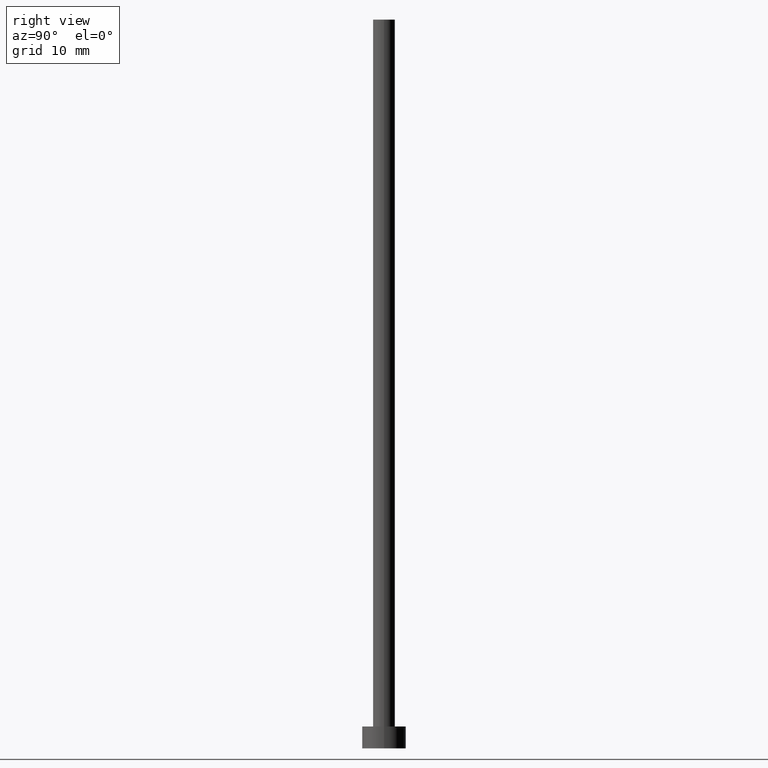
[diagram: clean part render]
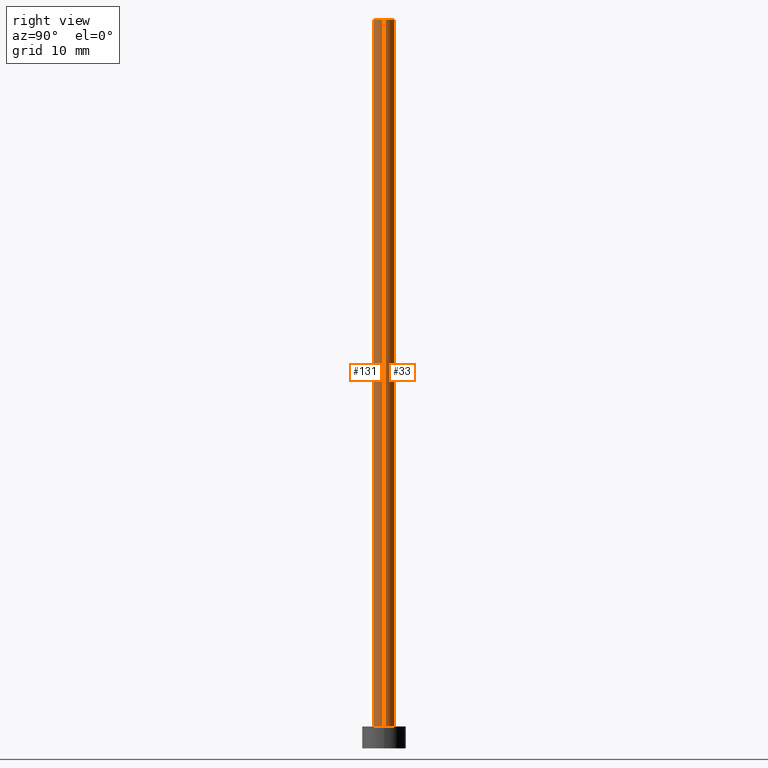
[diagram: same view with one multi-face feature highlighted, each face labeled with its STEP entity id]
A machine part, right view. The highlighted faces form ONE feature: a constant-radius fillet chain: 2 tangent blend faces with common blend radius 1.5 mm. The faces share edges in the B-rep.
Their STEP definitions:
[1] entity #33 (Cylinder):
#3 = CIRCLE ( 'NONE', #7, 1.500000000000000222 ) ;
#7 = AXIS2_PLACEMENT_3D ( 'NONE', #145, #199, #236 ) ;
#27 = VERTEX_POINT ( 'NONE', #249 ) ;
#29 = ORIENTED_EDGE ( 'NONE', *, *, #108, .F. ) ;
#33 = ADVANCED_FACE ( 'NONE', ( #122 ), #212, .T. ) ;
#34 = EDGE_LOOP ( 'NONE', ( #29, #241, #49, #50 ) ) ;
#49 = ORIENTED_EDGE ( 'NONE', *, *, #69, .T. ) ;
#50 = ORIENTED_EDGE ( 'NONE', *, *, #100, .F. ) ;
#55 = AXIS2_PLACEMENT_3D ( 'NONE', #99, #182, #234 ) ;
#69 = EDGE_CURVE ( 'NONE', #27, #112, #3, .T. ) ;
#72 = DIRECTION ( 'NONE',  ( -0.000000000000000000, -0.000000000000000000, -1.000000000000000000 ) ) ;
#84 = DIRECTION ( 'NONE',  ( -0.000000000000000000, -0.000000000000000000, -1.000000000000000000 ) ) ;
#97 = CARTESIAN_POINT ( 'NONE',  ( 1.500000000000000222, 1.836970198721029934E-16, 100.0000000000000000 ) ) ;
#99 = CARTESIAN_POINT ( 'NONE',  ( 0.000000000000000000, 0.000000000000000000, 100.0000000000000000 ) ) ;
#100 = EDGE_CURVE ( 'NONE', #135, #112, #123, .T. ) ;
#108 = EDGE_CURVE ( 'NONE', #110, #135, #118, .T. ) ;
#110 = VERTEX_POINT ( 'NONE', #97 ) ;
#112 = VERTEX_POINT ( 'NONE', #186 ) ;
#118 = CIRCLE ( 'NONE', #55, 1.500000000000000222 ) ;
#122 = FACE_OUTER_BOUND ( 'NONE', #34, .T. ) ;
#123 = LINE ( 'NONE', #198, #220 ) ;
#135 = VERTEX_POINT ( 'NONE', #174 ) ;
#145 = CARTESIAN_POINT ( 'NONE',  ( 0.000000000000000000, 0.000000000000000000, 3.000000000000000000 ) ) ;
#162 = EDGE_CURVE ( 'NONE', #110, #27, #254, .T. ) ;
#166 = DIRECTION ( 'NONE',  ( -1.000000000000000000, 0.000000000000000000, 0.000000000000000000 ) ) ;
#174 = CARTESIAN_POINT ( 'NONE',  ( -1.500000000000000222, 0.000000000000000000, 100.0000000000000000 ) ) ;
#182 = DIRECTION ( 'NONE',  ( 0.000000000000000000, 0.000000000000000000, 1.000000000000000000 ) ) ;
#186 = CARTESIAN_POINT ( 'NONE',  ( -1.500000000000000222, 0.000000000000000000, 3.000000000000000000 ) ) ;
#198 = CARTESIAN_POINT ( 'NONE',  ( -1.500000000000000222, 0.000000000000000000, 100.0000000000000000 ) ) ;
#199 = DIRECTION ( 'NONE',  ( 0.000000000000000000, 0.000000000000000000, 1.000000000000000000 ) ) ;
#200 = VECTOR ( 'NONE', #84, 1000.000000000000000 ) ;
#206 = CARTESIAN_POINT ( 'NONE',  ( 1.500000000000000222, 1.836970198721029934E-16, 100.0000000000000000 ) ) ;
#212 = CYLINDRICAL_SURFACE ( 'NONE', #238, 1.500000000000000222 ) ;
#215 = DIRECTION ( 'NONE',  ( -0.000000000000000000, -0.000000000000000000, -1.000000000000000000 ) ) ;
#220 = VECTOR ( 'NONE', #215, 1000.000000000000000 ) ;
#234 = DIRECTION ( 'NONE',  ( 1.000000000000000000, 0.000000000000000000, 0.000000000000000000 ) ) ;
#236 = DIRECTION ( 'NONE',  ( 1.000000000000000000, 0.000000000000000000, 0.000000000000000000 ) ) ;
#238 = AXIS2_PLACEMENT_3D ( 'NONE', #252, #72, #166 ) ;
#241 = ORIENTED_EDGE ( 'NONE', *, *, #162, .T. ) ;
#249 = CARTESIAN_POINT ( 'NONE',  ( 1.500000000000000222, 1.836970198721029934E-16, 3.000000000000000000 ) ) ;
#252 = CARTESIAN_POINT ( 'NONE',  ( 0.000000000000000000, 0.000000000000000000, 100.0000000000000000 ) ) ;
#254 = LINE ( 'NONE', #206, #200 ) ;
[2] entity #131 (Cylinder):
#17 = CIRCLE ( 'NONE', #66, 1.500000000000000222 ) ;
#20 = DIRECTION ( 'NONE',  ( -1.000000000000000000, 0.000000000000000000, 0.000000000000000000 ) ) ;
#27 = VERTEX_POINT ( 'NONE', #249 ) ;
#38 = CARTESIAN_POINT ( 'NONE',  ( 0.000000000000000000, 0.000000000000000000, 100.0000000000000000 ) ) ;
#66 = AXIS2_PLACEMENT_3D ( 'NONE', #38, #161, #160 ) ;
#79 = CARTESIAN_POINT ( 'NONE',  ( 0.000000000000000000, 0.000000000000000000, 100.0000000000000000 ) ) ;
#84 = DIRECTION ( 'NONE',  ( -0.000000000000000000, -0.000000000000000000, -1.000000000000000000 ) ) ;
#85 = EDGE_CURVE ( 'NONE', #135, #110, #17, .T. ) ;
#86 = CYLINDRICAL_SURFACE ( 'NONE', #87, 1.500000000000000222 ) ;
#87 = AXIS2_PLACEMENT_3D ( 'NONE', #79, #130, #20 ) ;
#97 = CARTESIAN_POINT ( 'NONE',  ( 1.500000000000000222, 1.836970198721029934E-16, 100.0000000000000000 ) ) ;
#100 = EDGE_CURVE ( 'NONE', #135, #112, #123, .T. ) ;
#102 = AXIS2_PLACEMENT_3D ( 'NONE', #221, #239, #223 ) ;
#110 = VERTEX_POINT ( 'NONE', #97 ) ;
#112 = VERTEX_POINT ( 'NONE', #186 ) ;
#123 = LINE ( 'NONE', #198, #220 ) ;
#130 = DIRECTION ( 'NONE',  ( -0.000000000000000000, -0.000000000000000000, -1.000000000000000000 ) ) ;
#131 = ADVANCED_FACE ( 'NONE', ( #164 ), #86, .T. ) ;
#135 = VERTEX_POINT ( 'NONE', #174 ) ;
#140 = EDGE_CURVE ( 'NONE', #112, #27, #235, .T. ) ;
#152 = ORIENTED_EDGE ( 'NONE', *, *, #85, .F. ) ;
#158 = ORIENTED_EDGE ( 'NONE', *, *, #100, .T. ) ;
#160 = DIRECTION ( 'NONE',  ( 1.000000000000000000, 0.000000000000000000, 0.000000000000000000 ) ) ;
#161 = DIRECTION ( 'NONE',  ( 0.000000000000000000, 0.000000000000000000, 1.000000000000000000 ) ) ;
#162 = EDGE_CURVE ( 'NONE', #110, #27, #254, .T. ) ;
#164 = FACE_OUTER_BOUND ( 'NONE', #208, .T. ) ;
#174 = CARTESIAN_POINT ( 'NONE',  ( -1.500000000000000222, 0.000000000000000000, 100.0000000000000000 ) ) ;
#180 = ORIENTED_EDGE ( 'NONE', *, *, #162, .F. ) ;
#186 = CARTESIAN_POINT ( 'NONE',  ( -1.500000000000000222, 0.000000000000000000, 3.000000000000000000 ) ) ;
#198 = CARTESIAN_POINT ( 'NONE',  ( -1.500000000000000222, 0.000000000000000000, 100.0000000000000000 ) ) ;
#200 = VECTOR ( 'NONE', #84, 1000.000000000000000 ) ;
#206 = CARTESIAN_POINT ( 'NONE',  ( 1.500000000000000222, 1.836970198721029934E-16, 100.0000000000000000 ) ) ;
#208 = EDGE_LOOP ( 'NONE', ( #180, #152, #158, #225 ) ) ;
#215 = DIRECTION ( 'NONE',  ( -0.000000000000000000, -0.000000000000000000, -1.000000000000000000 ) ) ;
#220 = VECTOR ( 'NONE', #215, 1000.000000000000000 ) ;
#221 = CARTESIAN_POINT ( 'NONE',  ( 0.000000000000000000, 0.000000000000000000, 3.000000000000000000 ) ) ;
#223 = DIRECTION ( 'NONE',  ( 1.000000000000000000, 0.000000000000000000, 0.000000000000000000 ) ) ;
#225 = ORIENTED_EDGE ( 'NONE', *, *, #140, .T. ) ;
#235 = CIRCLE ( 'NONE', #102, 1.500000000000000222 ) ;
#239 = DIRECTION ( 'NONE',  ( 0.000000000000000000, 0.000000000000000000, 1.000000000000000000 ) ) ;
#249 = CARTESIAN_POINT ( 'NONE',  ( 1.500000000000000222, 1.836970198721029934E-16, 3.000000000000000000 ) ) ;
#254 = LINE ( 'NONE', #206, #200 ) ;